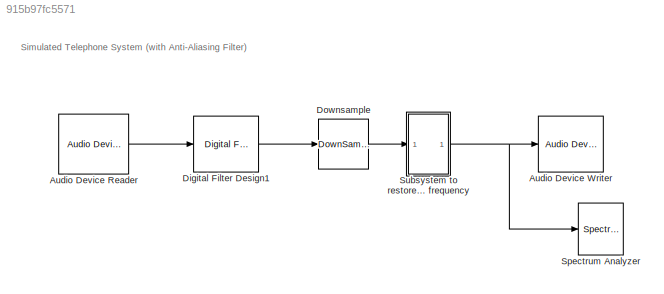
MODEL slx_915b97fc5571
KIND model
CONFIG AbsTol = auto
CONFIG EnableMultiTasking = on
CONFIG FixedStep = auto
CONFIG MaxStep = auto
CONFIG MinStep = auto
CONFIG RelTol = 1e-3
CONFIG SampleTimeConstraint = Unconstrained
CONFIG Solver = VariableStepAuto
CONFIG SolverName = VariableStepAuto
CONFIG StartTime = 0.0
CONFIG StopTime = inf
BLOCK [Reference] Audio Device Reader  REF=audiosources/Audio Device
Reader
  Ports = [0, 1]
  SourceBlock = audiosources/Audio Device\nReader
  SourceProductBaseCode = AU
  SourceProductName = Audio System Toolbox
  SourceType = Audio Device Reader
BLOCK [Reference] Audio Device Writer  REF=dspsnks4/Audio Device
Writer
  Ports = [1]
  SourceBlock = dspsnks4/Audio Device\nWriter
  SourceProductBaseCode = DS
  SourceProductName = DSP System Toolbox
  SourceType = Audio Device Writer
BLOCK [Reference] Digital Filter Design1  REF=dsparch4/Digital
Filter Design
  Ports = [1, 1]
  SourceBlock = dsparch4/Digital\nFilter Design
  SourceProductBaseCode = DS
  SourceProductName = DSP System Toolbox
  SourceType = Digital Filter Design
  UserDataPersistent = on
BLOCK [DownSample] Downsample
  N = 6
BLOCK [SpectrumAnalyzer] Spectrum Analyzer
  NumInputPorts = 1
  Ports = [1]
  ScopeSpecificationString = spbscopes.SpectrumAnalyzerBlockCfg('CurrentConfiguration', extmgr.ConfigurationSet(extmgr.Configuration('Core','General UI',true),extmgr.Configuration('Core','Source UI',true),extmgr.Configuration('Sources','WiredSimulink',true),extmgr.Configuration('Visuals','Spectrum',true,'AxesProperties',struct('Color',{[0 0 0],[0 0 0]},'XColor',{[0.686274509803922 0.686274509803922 0.686274509803922],[0.68627...<+1781ch>
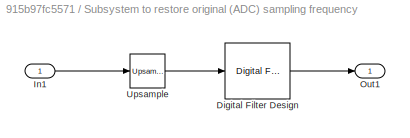
BLOCK [SubSystem] Subsystem to restore original (ADC) sampling frequency
  Ports = [1, 1]
  RequestExecContextInheritance = off
  Variant = off
BLOCK [Reference] Subsystem to restore original (ADC) sampling frequency/Digital Filter Design  REF=dsparch4/Digital
Filter Design
  Ports = [1, 1]
  SourceBlock = dsparch4/Digital\nFilter Design
  SourceProductBaseCode = DS
  SourceProductName = DSP System Toolbox
  SourceType = Digital Filter Design
  UserDataPersistent = on
BLOCK [Inport] Subsystem to restore original (ADC) sampling frequency/In1
  IconDisplay = Port number
BLOCK [Outport] Subsystem to restore original (ADC) sampling frequency/Out1
  IconDisplay = Port number
BLOCK [Reference] Subsystem to restore original (ADC) sampling frequency/Upsample  REF=dspsigops/Upsample
  Ports = [1, 1]
  SourceBlock = dspsigops/Upsample
  SourceProductBaseCode = DS
  SourceProductName = DSP System Toolbox
  SourceType = Upsample
  UserDataPersistent = on
ANNOTATION (root): Simulated Telephone System (with Anti-Aliasing Filter)
LINE Audio Device Reader:1 -> Digital Filter Design1:1
LINE Digital Filter Design1:1 -> Downsample:1
LINE Downsample:1 -> Subsystem to restore original (ADC) sampling frequency:1
LINE Subsystem to restore original (ADC) sampling frequency/Digital Filter Design:1 -> Subsystem to restore original (ADC) sampling frequency/Out1:1
LINE Subsystem to restore original (ADC) sampling frequency/In1:1 -> Subsystem to restore original (ADC) sampling frequency/Upsample:1
LINE Subsystem to restore original (ADC) sampling frequency/Upsample:1 -> Subsystem to restore original (ADC) sampling frequency/Digital Filter Design:1
NET Subsystem to restore original (ADC) sampling frequency:1 -> Audio Device Writer:1, Spectrum Analyzer:1
note: NET lines group one-source signal fan-out (src -> all destinations, sorted); 1:1 wires keep LINE
